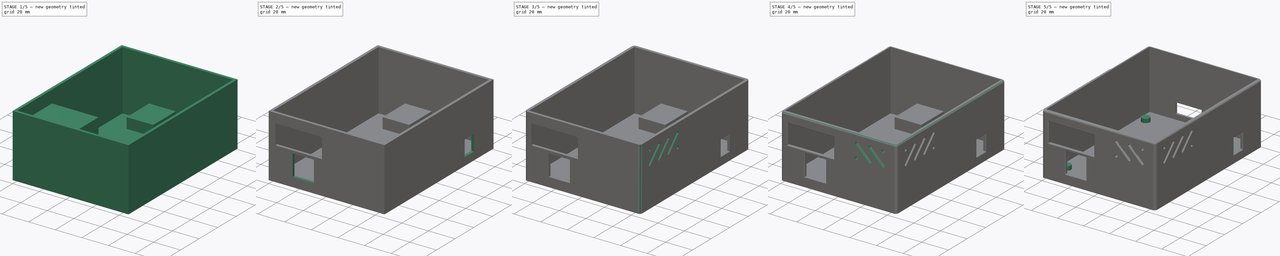
[diagram: build sequence overview — one tinted view per stage of 5, left to right]
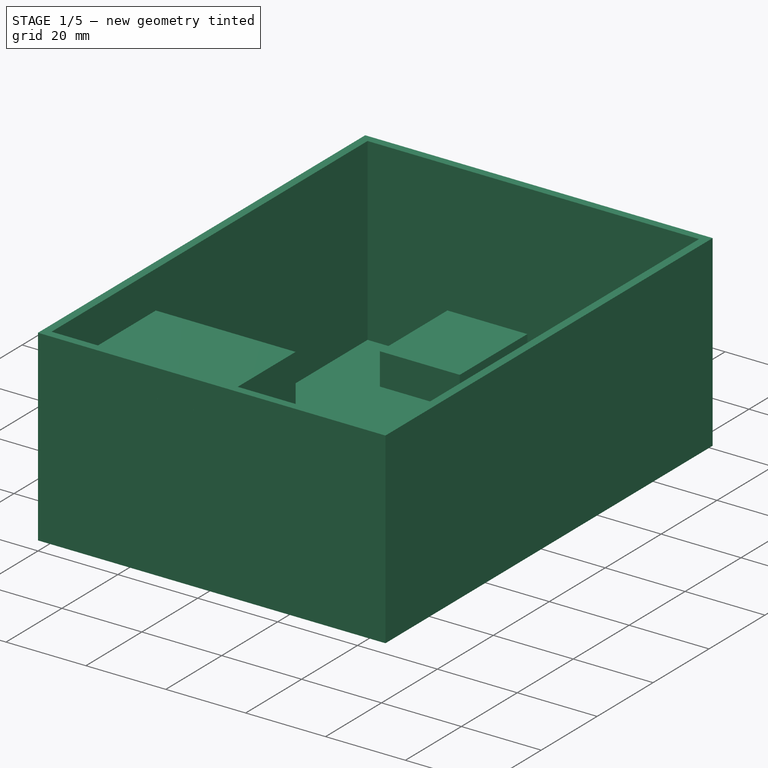
[diagram: stage 1 of 5 — iso view after this stage's code; geometry added in this stage tinted green]
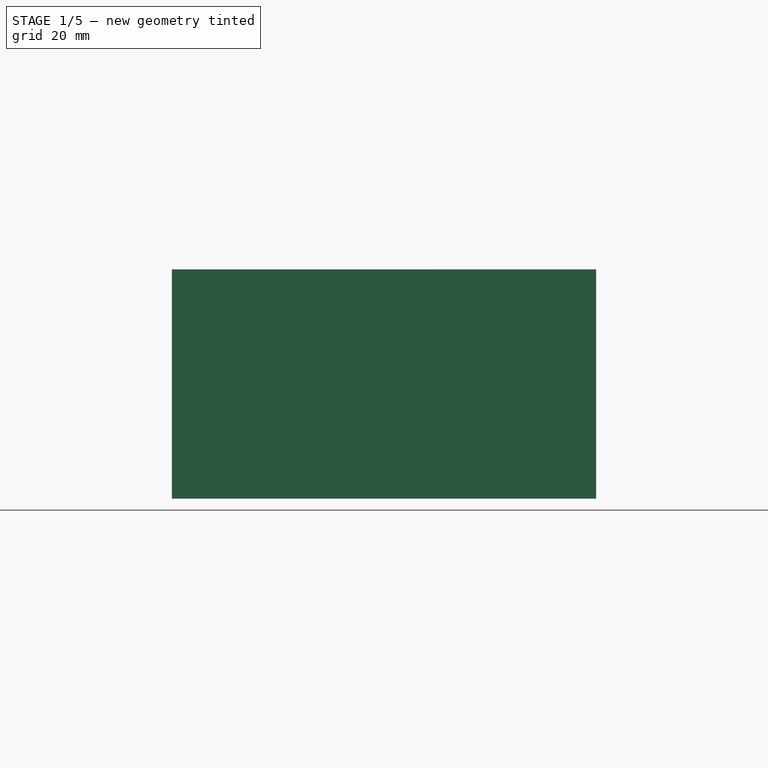
[diagram: stage 1 of 5 — front view after this stage's code; geometry added in this stage tinted green]
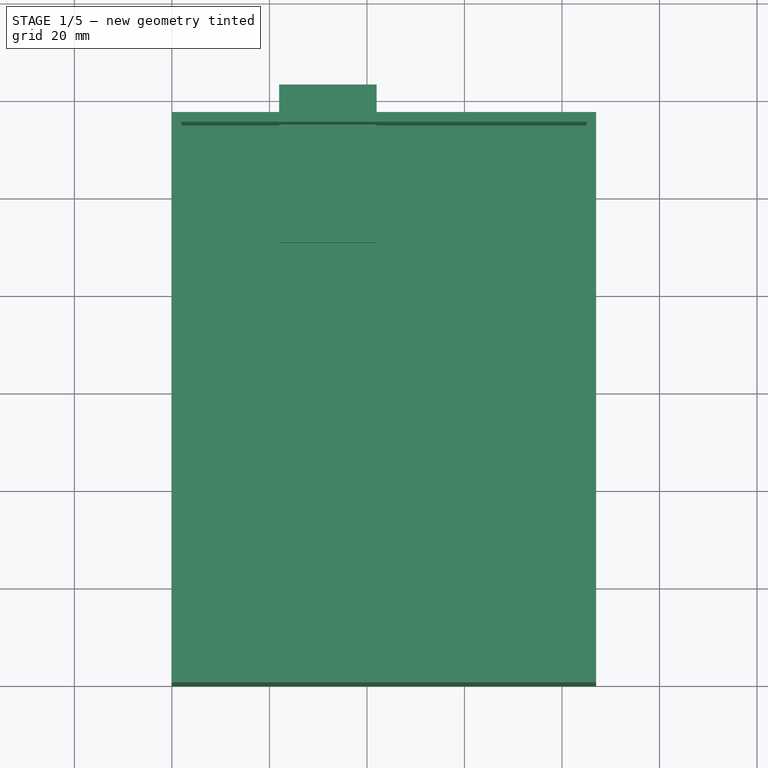
[diagram: stage 1 of 5 — top view after this stage's code; geometry added in this stage tinted green]
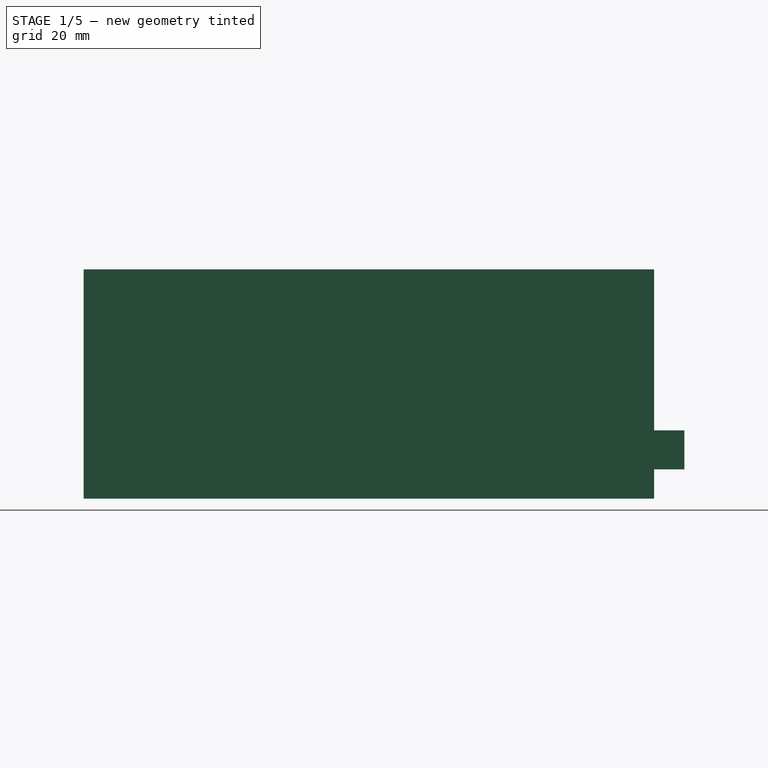
[diagram: stage 1 of 5 — right view after this stage's code; geometry added in this stage tinted green]
FCSTD DOCUMENT  (FreeCAD 0.14R3702 (Git))
Label: Modelodelgabinete
License: CC-BY 3.0
LicenseURL: http://creativecommons.org/licenses/by/3.0/
objects: PartDesign::Fillet×9, Part::Box×5, Part::Cut×5, Sketcher::SketchObject×4, Part::Part2DObjectPython×2, Part::Extrusion×2, PartDesign::Pad×2, PartDesign::Pocket×2
note: 35 computed .brp shape members not serialized (recipe doc carries the construction recipe); baked Part::Feature solids carry a one-line shape summary decoded from their .brp

FEATURE [Part::Box] Box  label="Exterior"
  Height = 47
  Length = 87
  Width = 117
FEATURE [Part::Box] Box001  label="Interior"
  Height = 45
  Length = 83
  Placement = pos=(2,2,2) rot=(0,0,1;0rad)
  Width = 113
FEATURE [Sketcher::SketchObject] Sketch002
  Placement = pos=(0,0,6) rot=(0,0,1;0rad)
  sketch-geometry (4):
    g0: LineSegment StartX=22 StartY=123.213 StartZ=0 EndX=42 EndY=123.213 EndZ=0
    g1: LineSegment StartX=42 StartY=123.213 StartZ=0 EndX=42 EndY=90.8368 EndZ=0
    g2: LineSegment StartX=42 StartY=90.8368 StartZ=0 EndX=22 EndY=90.8368 EndZ=0
    g3: LineSegment StartX=22 StartY=90.8368 StartZ=0 EndX=22 EndY=123.213 EndZ=0
  constraints (12):
    c: Coincident(g0,g1)
    c: Coincident(g1,g2)
    c: Coincident(g2,g3)
    c: Coincident(g3,g0)
    c: Horizontal(g0)
    c: Horizontal(g2)
    c: Vertical(g1)
    c: Vertical(g3)
    c: DistanceY(g-1,g2) = 90.8368
    c: DistanceX(g-1,g2) = 22
    c: DistanceX(g2) = -20
    c: DistanceY(g1) = -32.3759
FEATURE [PartDesign::Pad] Pad
  Length = 8
  Length2 = 100
  Placement = pos=(0,0,6) rot=(0,0,1;0rad)
  Sketch = -> Sketch002
  Type = 0
FEATURE [Part::Box] Box003  label="Cubo001"
  Height = 15
  Length = 35
  Placement = pos=(5,0,25) rot=(0,0,1;0rad)
  Width = 35
FEATURE [Part::Cut] Cut
  Base = -> Box
  Tool = -> Box001
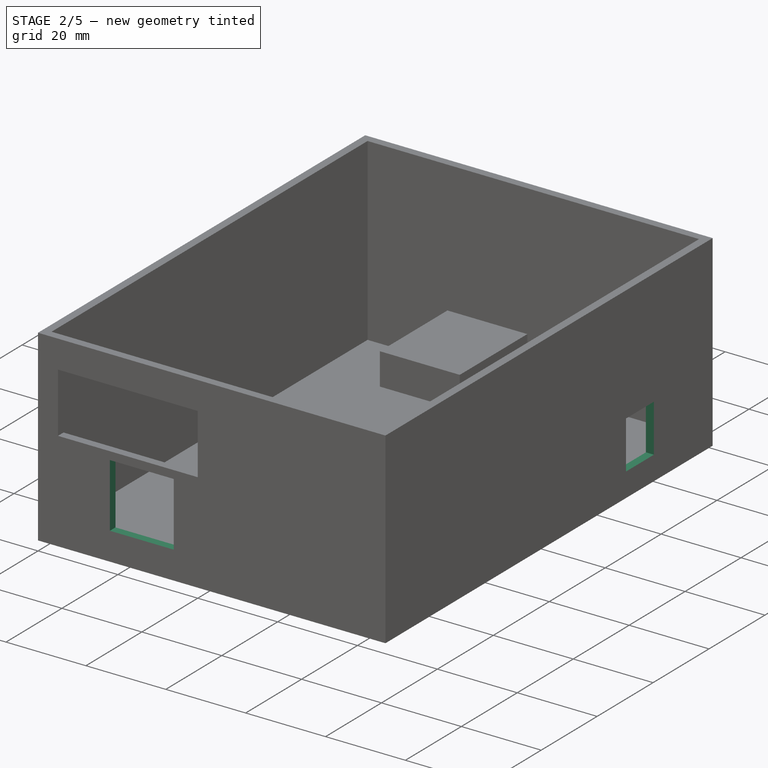
[diagram: stage 2 of 5 — iso view after this stage's code; geometry added in this stage tinted green]
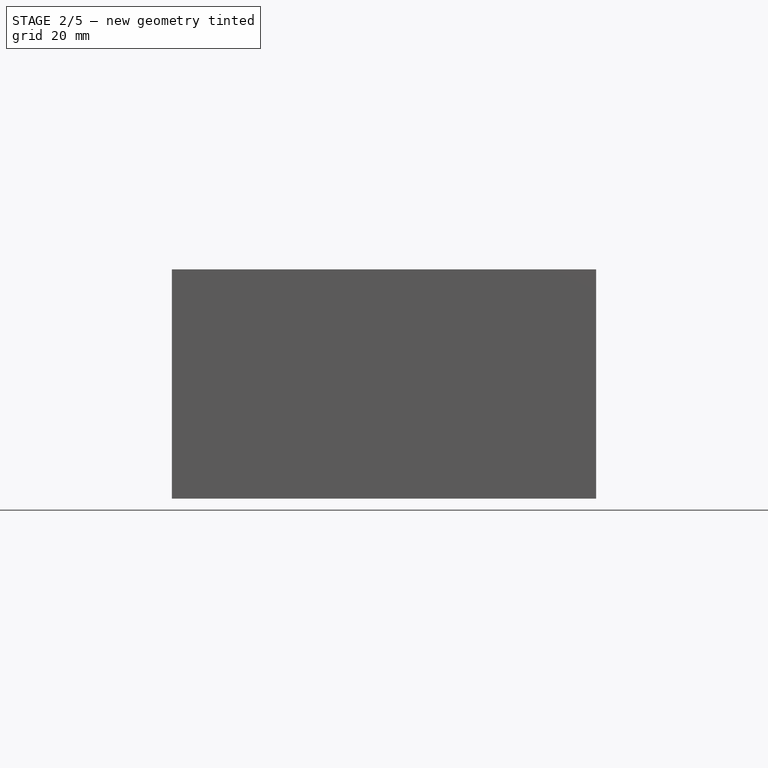
[diagram: stage 2 of 5 — front view after this stage's code; geometry added in this stage tinted green]
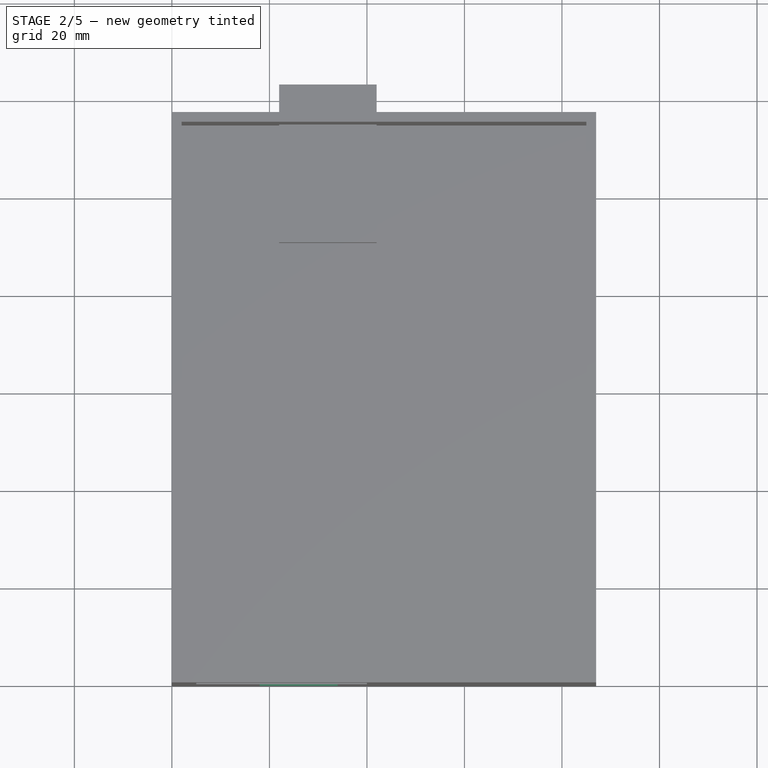
[diagram: stage 2 of 5 — top view after this stage's code; geometry added in this stage tinted green]
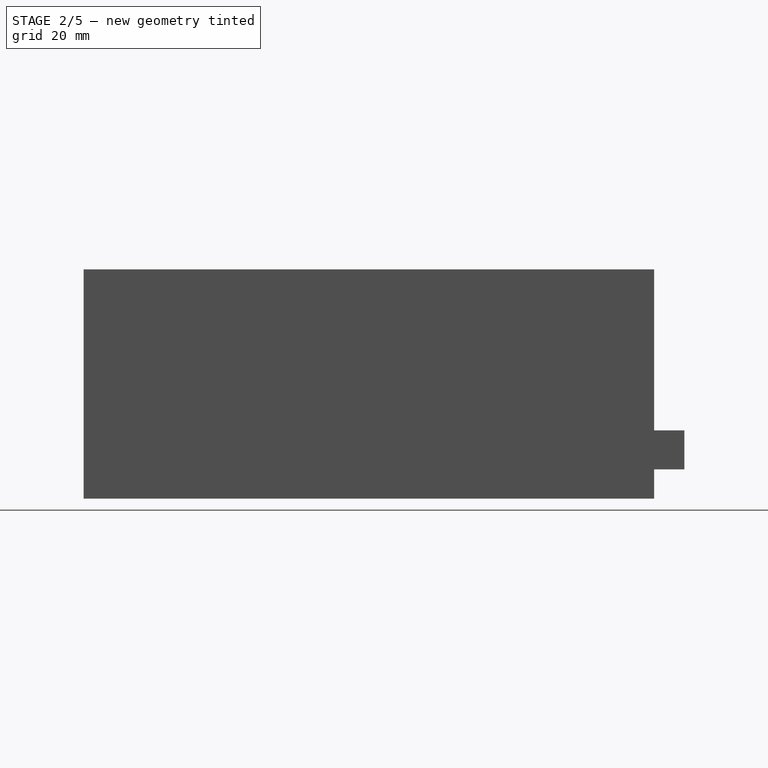
[diagram: stage 2 of 5 — right view after this stage's code; geometry added in this stage tinted green]
FEATURE [Part::Box] Box002  label="Cubo"
  Height = 16
  Length = 16
  Placement = pos=(18,0,7) rot=(0,0,1;0rad)
  Width = 16
FEATURE [Part::Box] Box004  label="Cubo002"
  Height = 12
  Length = 10
  Placement = pos=(79,86,6) rot=(0,0,1;0rad)
  Width = 10
FEATURE [Part::Cut] Cut001
  Base = -> Cut
  Tool = -> Box002
FEATURE [Part::Cut] Cut002
  Base = -> Cut001
  Tool = -> Box003
FEATURE [Part::Cut] Cut003
  Base = -> Cut002
  Tool = -> Box004
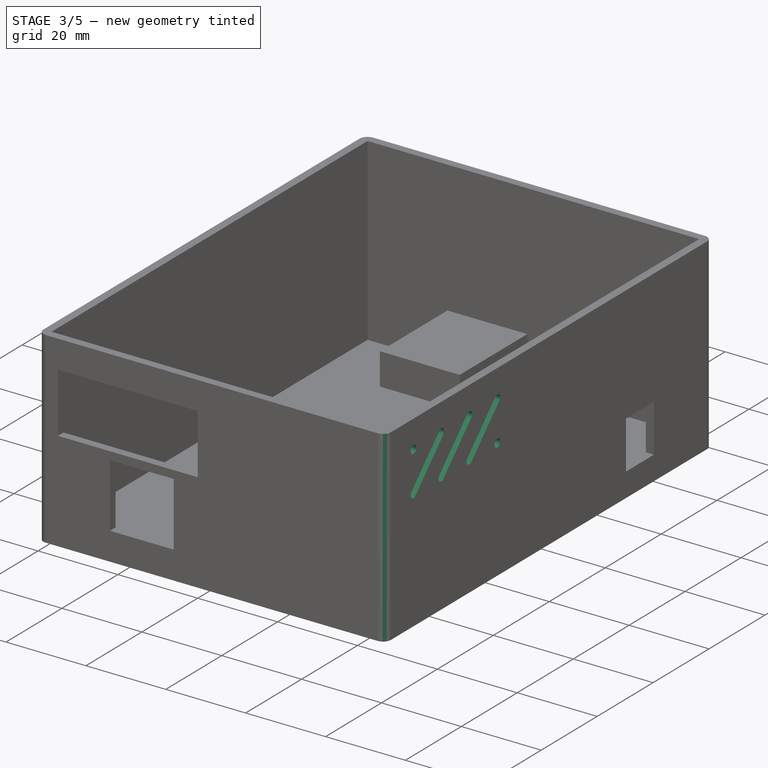
[diagram: stage 3 of 5 — iso view after this stage's code; geometry added in this stage tinted green]
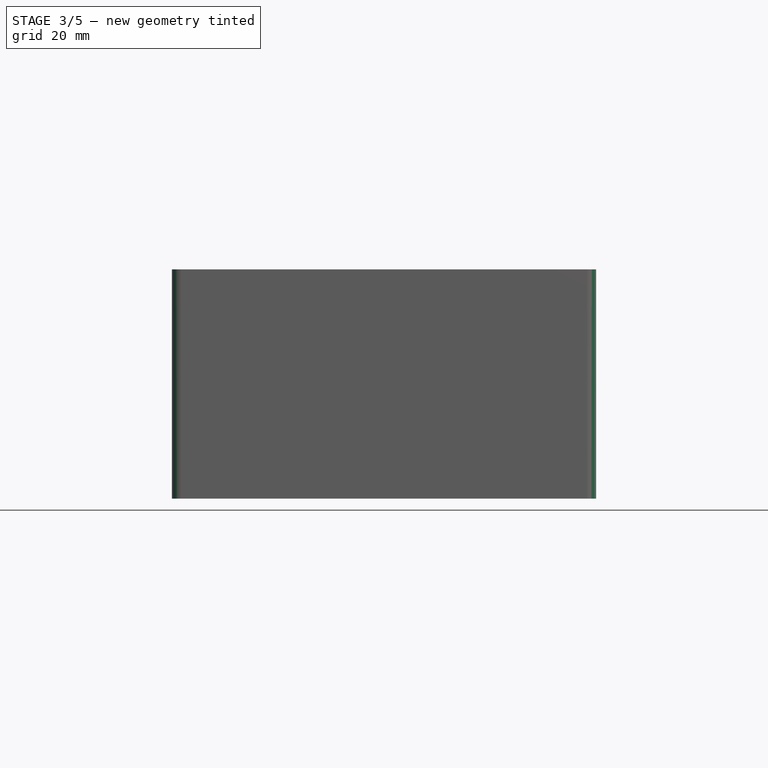
[diagram: stage 3 of 5 — front view after this stage's code; geometry added in this stage tinted green]
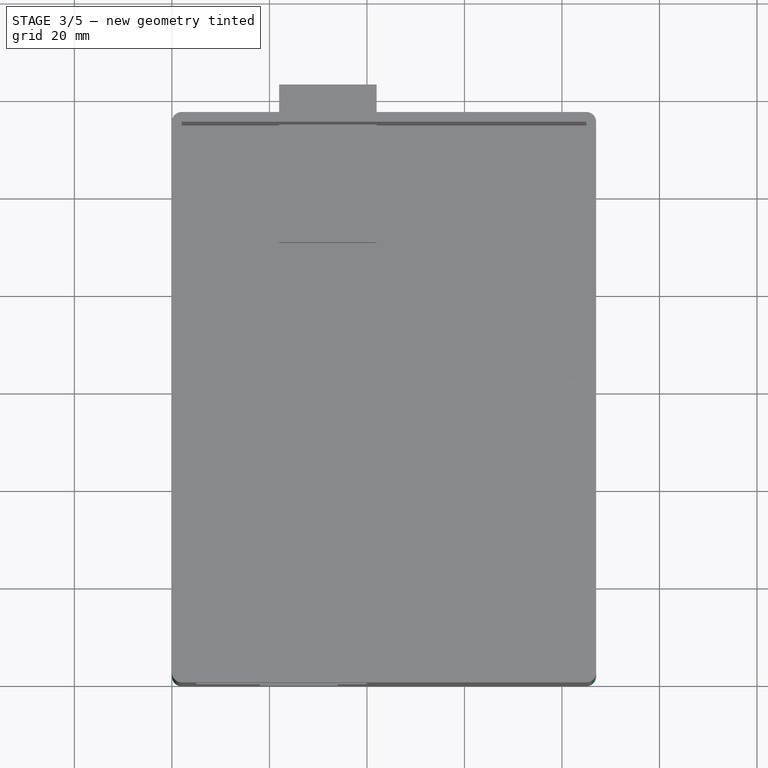
[diagram: stage 3 of 5 — top view after this stage's code; geometry added in this stage tinted green]
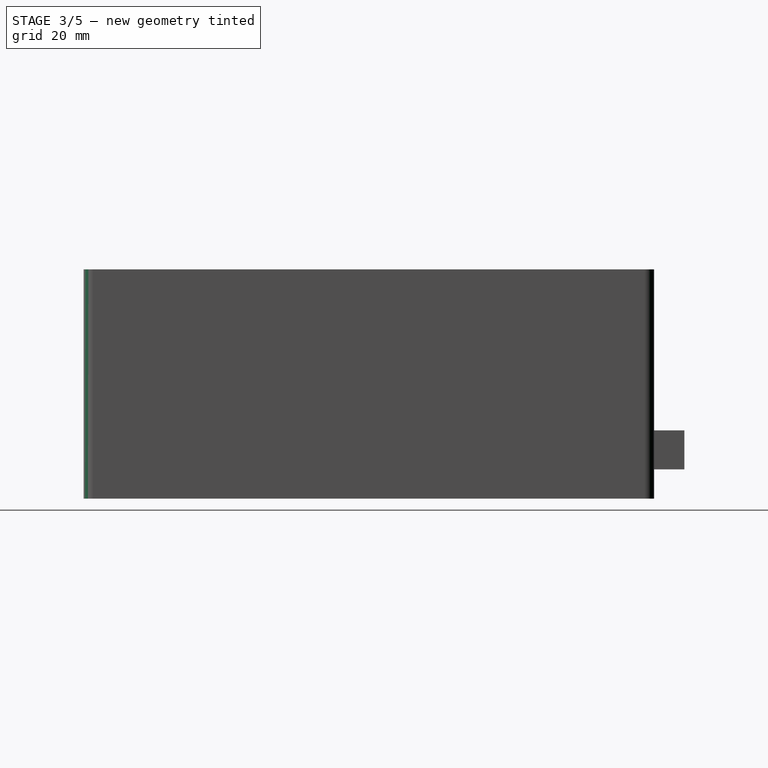
[diagram: stage 3 of 5 — right view after this stage's code; geometry added in this stage tinted green]
FEATURE [PartDesign::Fillet] Fillet
  Base = -> Cut003 [Edge6]
  Radius = 2
FEATURE [PartDesign::Fillet] Fillet001
  Base = -> Fillet [Edge3]
  Radius = 2
FEATURE [PartDesign::Fillet] Fillet002
  Base = -> Fillet001 [Edge45]
  Radius = 2
FEATURE [PartDesign::Fillet] Fillet003
  Base = -> Fillet002 [Edge15]
  Radius = 2
FEATURE [Sketcher::SketchObject] Sketch
  Placement = pos=(87,0,0) rot=(0.57735,0.57735,0.57735;2.0944rad)
  Support = -> Fillet003 [Face5]
  sketch-geometry (14):
    g0: ArcOfCircle CenterX=10 CenterY=30 CenterZ=0 NormalX=0 NormalY=0 NormalZ=1 Radius=1 StartAngle=2.35619 EndAngle=5.49779
    g1: ArcOfCircle CenterX=20 CenterY=40 CenterZ=0 NormalX=0 NormalY=0 NormalZ=1 Radius=1 StartAngle=5.49779 EndAngle=8.63938
    g2: LineSegment StartX=10.7071 StartY=29.2929 StartZ=0 EndX=20.7071 EndY=39.2929 EndZ=0
    g3: LineSegment StartX=9.29289 StartY=30.7071 StartZ=0 EndX=19.2929 EndY=40.7071 EndZ=0
    g4: ArcOfCircle CenterX=20 CenterY=30 CenterZ=0 NormalX=0 NormalY=0 NormalZ=1 Radius=1 StartAngle=2.35619 EndAngle=5.49779
    g5: ArcOfCircle CenterX=30 CenterY=40 CenterZ=0 NormalX=0 NormalY=0 NormalZ=1 Radius=1 StartAngle=5.49779 EndAngle=8.63938
    g6: LineSegment StartX=20.7071 StartY=29.2929 StartZ=0 EndX=30.7071 EndY=39.2929 EndZ=0
    g7: LineSegment StartX=19.2929 StartY=30.7071 StartZ=0 EndX=29.2929 EndY=40.7071 EndZ=0
    g8: ArcOfCircle CenterX=30 CenterY=30 CenterZ=0 NormalX=0 NormalY=0 NormalZ=1 Radius=1 StartAngle=2.35619 EndAngle=5.49779
    g9: ArcOfCircle CenterX=40 CenterY=40 CenterZ=0 NormalX=0 NormalY=0 NormalZ=1 Radius=1 StartAngle=5.4978 EndAngle=8.63937
    g10: LineSegment StartX=30.7071 StartY=29.2929 StartZ=0 EndX=40.7071 EndY=39.2929 EndZ=0
    g11: LineSegment StartX=29.2929 StartY=30.7071 StartZ=0 EndX=39.2929 EndY=40.7071 EndZ=0
    g12: Circle CenterX=40 CenterY=30 CenterZ=0 NormalX=0 NormalY=0 NormalZ=1 Radius=1
    g13: Circle CenterX=10 CenterY=40 CenterZ=0 NormalX=0 NormalY=0 NormalZ=1 Radius=1
  constraints (44):
    c: Tangent(g0,g2)
    c: Tangent(g0,g3)
    c: Tangent(g1,g2)
    c: Tangent(g1,g3)
    c: Coincident(g0,g3)
    c: Coincident(g0,g2)
    c: Coincident(g2,g1)
    c: Coincident(g3,g1)
    c: Equal(g0,g1)
    c: DistanceX(g-1,g0) = 10
    c: Distance(g0,g0) = 2
    c: DistanceY(g-1,g0) = 30
    c: Angle(g2,g-1) = 2.35619
    c: DistanceY(g-1,g1) = 40
    c: DistanceX(g0,g4) = 10
    c: Tangent(g4,g6)
    c: Tangent(g4,g7)
    c: Tangent(g5,g6)
    c: Tangent(g5,g7)
    c: Coincident(g4,g7)
    c: Coincident(g4,g6)
    c: Coincident(g6,g5)
    c: Coincident(g7,g5)
    c: Equal(g4,g5)
    c: DistanceX(g5,g1) = -10
    c: DistanceY(g1,g5) = 0
    c: Distance(g4,g4) = 2
    c: Tangent(g8,g10)
    c: Tangent(g8,g11)
    c: Tangent(g9,g10)
    c: Tangent(g9,g11)
    c: Coincident(g8,g11)
    c: Coincident(g8,g10)
    c: Coincident(g10,g9)
    c: Coincident(g11,g9)
    c: Equal(g8,g9)
    c: Distance(g8,g8) = 2
    c: DistanceX(g9,g5) = -10
    c: DistanceX(g4,g8) = 10
    c: DistanceY(g4,g0) = 0
    c: DistanceY(g4,g8) = 0
    c: DistanceY(g9,g5) = 0
    c: Radius(g12) = 1
    c: Radius(g13) = 1
FEATURE [PartDesign::Pocket] Pocket
  Length = 5
  Sketch = -> Sketch
  Type = 0
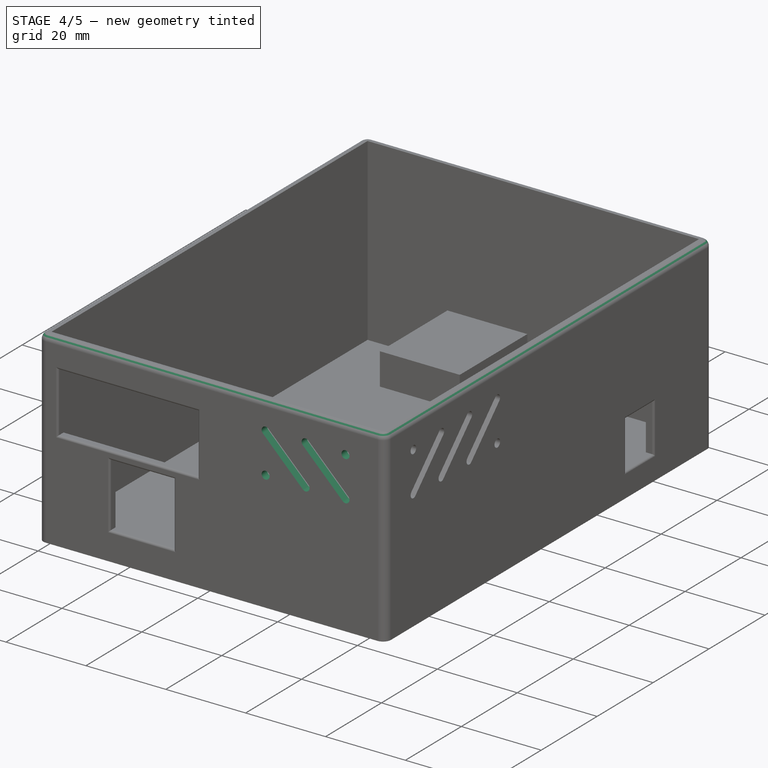
[diagram: stage 4 of 5 — iso view after this stage's code; geometry added in this stage tinted green]
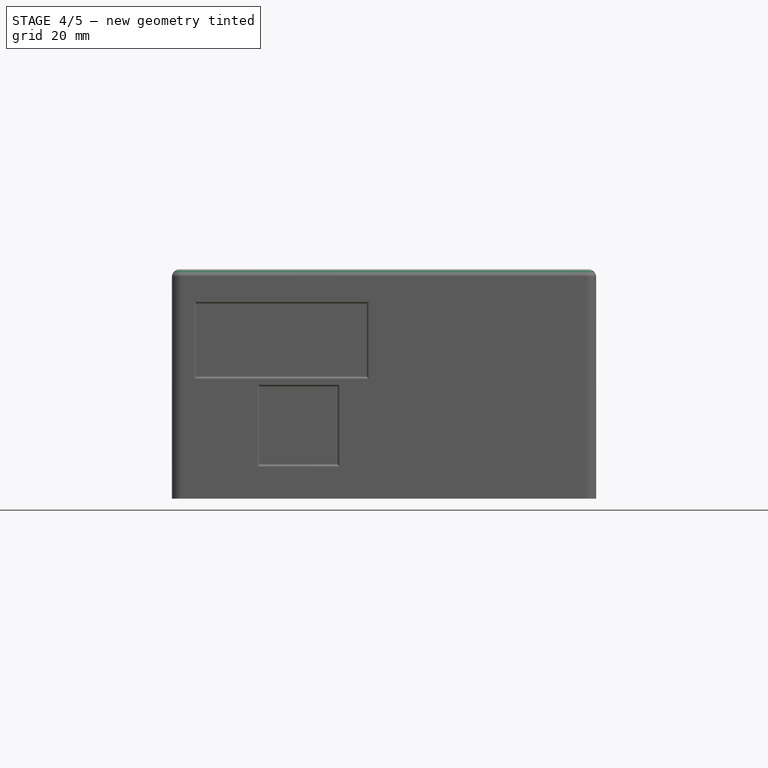
[diagram: stage 4 of 5 — front view after this stage's code; geometry added in this stage tinted green]
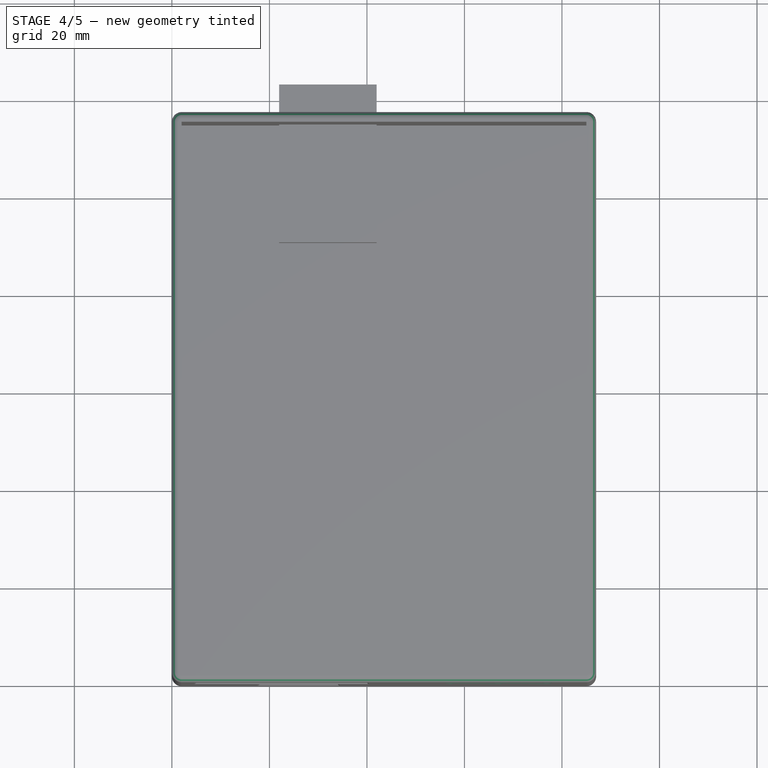
[diagram: stage 4 of 5 — top view after this stage's code; geometry added in this stage tinted green]
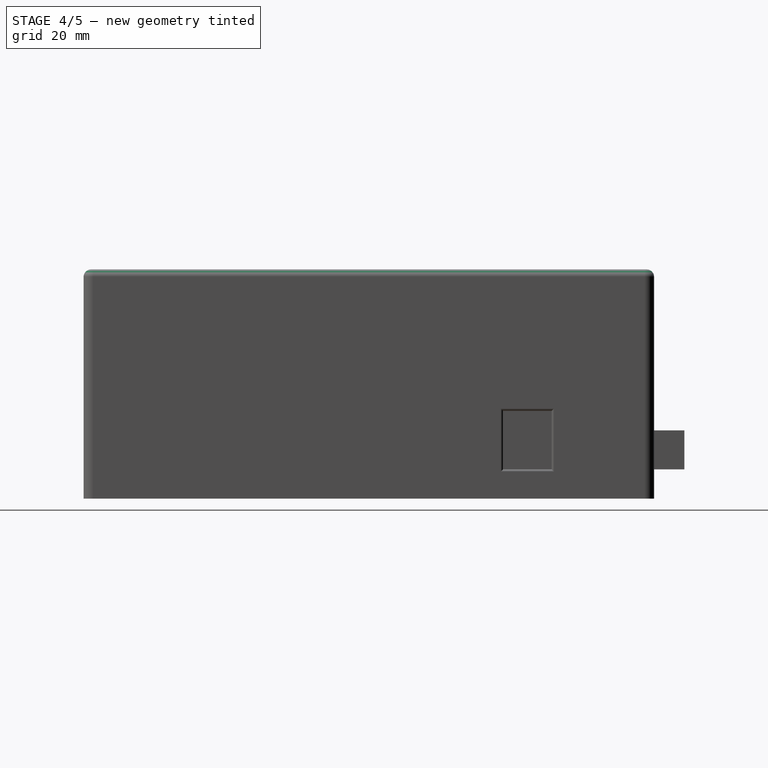
[diagram: stage 4 of 5 — right view after this stage's code; geometry added in this stage tinted green]
FEATURE [PartDesign::Fillet] Fillet004
  Base = -> Pocket [Edge16,Edge39,Edge42,Edge13,Edge11,Edge15,Edge36,Edge41]
  Radius = 1.5
FEATURE [PartDesign::Fillet] Fillet005
  Base = -> Fillet004 [Edge62,Edge60,Edge59,Edge61]
  Radius = 0.5
FEATURE [PartDesign::Fillet] Fillet006
  Base = -> Fillet005 [Edge9,Edge10,Edge11,Edge12]
  Radius = 0.5
FEATURE [PartDesign::Fillet] Fillet007
  Base = -> Fillet006 [Edge83,Edge81,Edge82,Edge84]
  Radius = 0.5
FEATURE [Sketcher::SketchObject] Sketch001
  ExternalGeometry = -> [Fillet007]
  Placement = pos=(0,0,0) rot=(1,0,0;1.5708rad)
  Support = -> Fillet007 [Face35]
  sketch-geometry (10):
    g0: ArcOfCircle CenterX=77 CenterY=30 CenterZ=0 NormalX=0 NormalY=0 NormalZ=1 Radius=1 StartAngle=3.92699 EndAngle=7.06858
    g1: ArcOfCircle CenterX=67 CenterY=40 CenterZ=0 NormalX=0 NormalY=0 NormalZ=1 Radius=1 StartAngle=0.785398 EndAngle=3.92699
    g2: LineSegment StartX=77.7071 StartY=30.7071 StartZ=0 EndX=67.7071 EndY=40.7071 EndZ=0
    g3: LineSegment StartX=76.2929 StartY=29.2929 StartZ=0 EndX=66.2929 EndY=39.2929 EndZ=0
    g4: Circle CenterX=77 CenterY=40 CenterZ=0 NormalX=0 NormalY=0 NormalZ=1 Radius=1
    g5: ArcOfCircle CenterX=67 CenterY=30 CenterZ=0 NormalX=0 NormalY=0 NormalZ=1 Radius=1 StartAngle=3.92699 EndAngle=7.06858
    g6: ArcOfCircle CenterX=57 CenterY=40 CenterZ=0 NormalX=0 NormalY=0 NormalZ=1 Radius=1 StartAngle=0.785398 EndAngle=3.92699
    g7: LineSegment StartX=67.7071 StartY=30.7071 StartZ=0 EndX=57.7071 EndY=40.7071 EndZ=0
    g8: LineSegment StartX=66.2929 StartY=29.2929 StartZ=0 EndX=56.2929 EndY=39.2929 EndZ=0
    g9: Circle CenterX=57 CenterY=30 CenterZ=0 NormalX=0 NormalY=0 NormalZ=1 Radius=1
  constraints (34):
    c: Tangent(g0,g2)
    c: Tangent(g0,g3)
    c: Tangent(g1,g2)
    c: Tangent(g1,g3)
    c: Coincident(g0,g3)
    c: Coincident(g0,g2)
    c: Coincident(g2,g1)
    c: Coincident(g3,g1)
    c: Equal(g0,g1)
    c: DistanceX(g0,g-3) = 8
    c: DistanceX(g1,g0) = 10
    c: Distance(g0,g0) = 2
    c: DistanceY(g0,g1) = 10
    c: DistanceY(g-3,g0) = 30
    c: Radius(g4) = 1
    c: DistanceX(g4,g1) = -10
    c: DistanceY(g0,g4) = 10
    c: Tangent(g5,g7)
    c: Tangent(g5,g8)
    c: Tangent(g6,g7)
    c: Tangent(g6,g8)
    c: Coincident(g5,g8)
    c: Coincident(g5,g7)
    c: Coincident(g7,g6)
    c: Coincident(g8,g6)
    c: Equal(g5,g6)
    c: Distance(g6,g6) = 2
    c: DistanceX(g5,g0) = 10
    c: DistanceY(g5,g0) = 0
    c: DistanceX(g6,g5) = 10
    c: DistanceY(g6,g5) = -10
    c: DistanceX(g9,g5) = 10
    c: DistanceY(g9,g5) = 0
    c: Radius(g9) = 1
FEATURE [PartDesign::Pocket] Pocket001
  Length = 5
  Sketch = -> Sketch001
  Type = 0
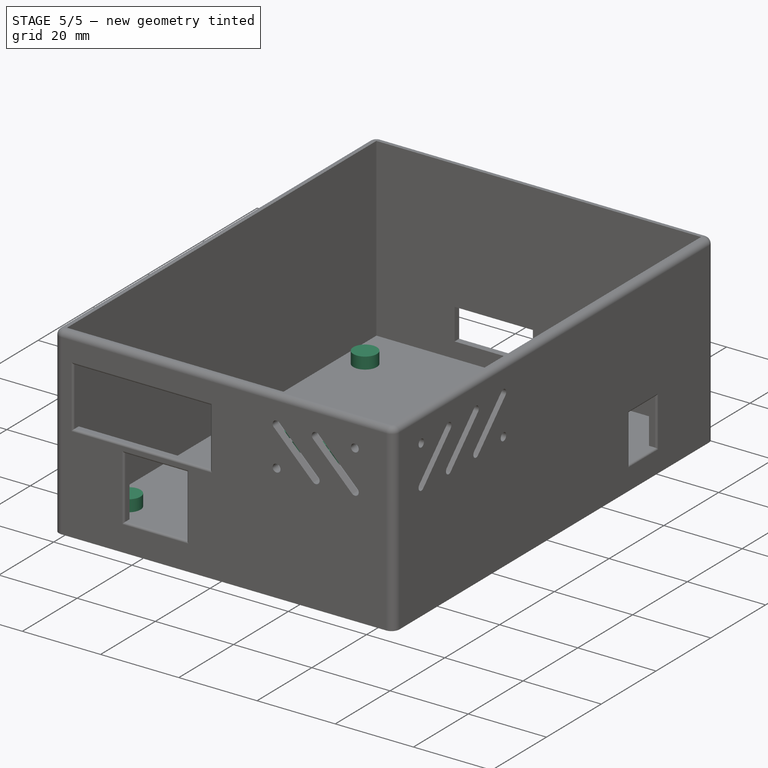
[diagram: stage 5 of 5 — iso view after this stage's code; geometry added in this stage tinted green]
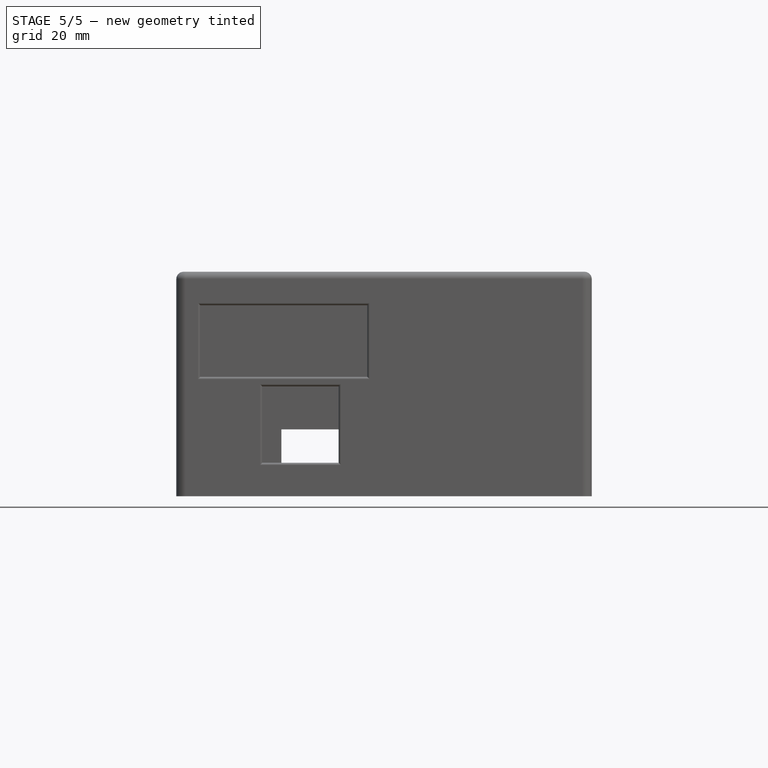
[diagram: stage 5 of 5 — front view after this stage's code; geometry added in this stage tinted green]
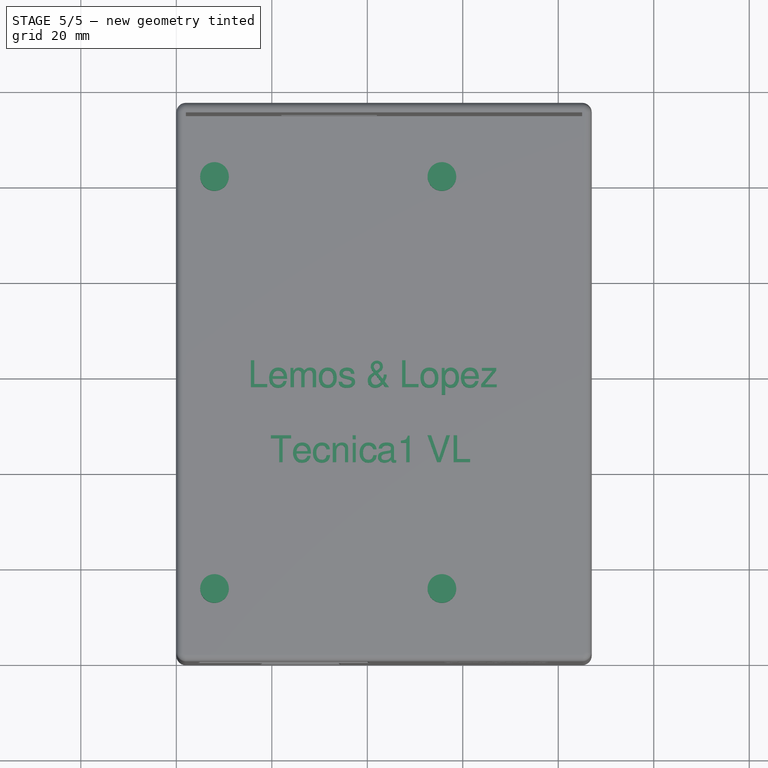
[diagram: stage 5 of 5 — top view after this stage's code; geometry added in this stage tinted green]
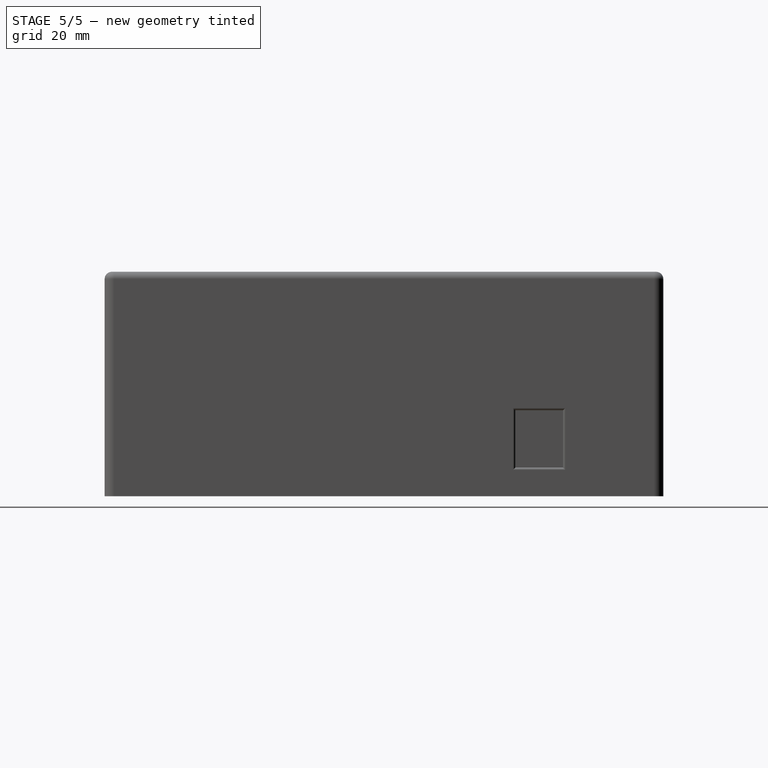
[diagram: stage 5 of 5 — right view after this stage's code; geometry added in this stage tinted green]
FEATURE [Part::Part2DObjectPython] ShapeString  # Draft 2D object (typed FeaturePython)
  FontFile = <path>
  Placement = pos=(19.4828,42.5226,2) rot=(0,0,1;0rad)
  Size = 3
  String = Tecnica1 VL
  Tracking = 2
FEATURE [Part::Extrusion] Extrude
  Base = -> ShapeString
  Dir = (0,0,1)
  Solid = true
FEATURE [Part::Part2DObjectPython] ShapeString001  # Draft 2D object (typed FeaturePython)
  FontFile = <path>
  Placement = pos=(14.9681,58.2097,2) rot=(0,0,1;0rad)
  Size = 3
  String = Lemos & Lopez
  Tracking = 0
FEATURE [Part::Extrusion] Extrude001
  Base = -> ShapeString001
  Dir = (0,0,2)
  Solid = true
FEATURE [Part::Cut] Cut004
  Base = -> Pocket001
  Tool = -> Pad
FEATURE [PartDesign::Fillet] Fillet008
  Base = -> Cut004 [Edge84,Edge83,Edge86,Edge85]
  Radius = 0.5
FEATURE [Sketcher::SketchObject] Sketch003
  Placement = pos=(0,0,2) rot=(0,0,1;0rad)
  Support = -> Fillet008 [Face67]
  sketch-geometry (4):
    g0: Circle CenterX=8 CenterY=16 CenterZ=0 NormalX=0 NormalY=0 NormalZ=1 Radius=3
    g1: Circle CenterX=8 CenterY=102.3 CenterZ=0 NormalX=0 NormalY=0 NormalZ=1 Radius=3
    g2: Circle CenterX=55.625 CenterY=102.3 CenterZ=0 NormalX=0 NormalY=0 NormalZ=1 Radius=3
    g3: Circle CenterX=55.625 CenterY=16 CenterZ=0 NormalX=0 NormalY=0 NormalZ=1 Radius=3
  constraints (12):
    c: Radius(g0) = 3
    c: DistanceY(g-1,g0) = 16
    c: DistanceX(g-1,g0) = 8
    c: DistanceY(g1,g0) = -86.3
    c: DistanceX(g0,g1) = 0
    c: Radius(g1) = 3
    c: Radius(g2) = 3
    c: DistanceX(g2,g1) = -47.625
    c: DistanceY(g2,g1) = 0
    c: DistanceY(g3,g0) = 0
    c: DistanceX(g3,g2) = 0
    c: Radius(g3) = 3
FEATURE [PartDesign::Pad] Pad001
  Length = 3
  Length2 = 100
  Sketch = -> Sketch003
  Type = 0
note: 2 file-system paths scrubbed to <path> (originals preserved in the JSON sidecar)
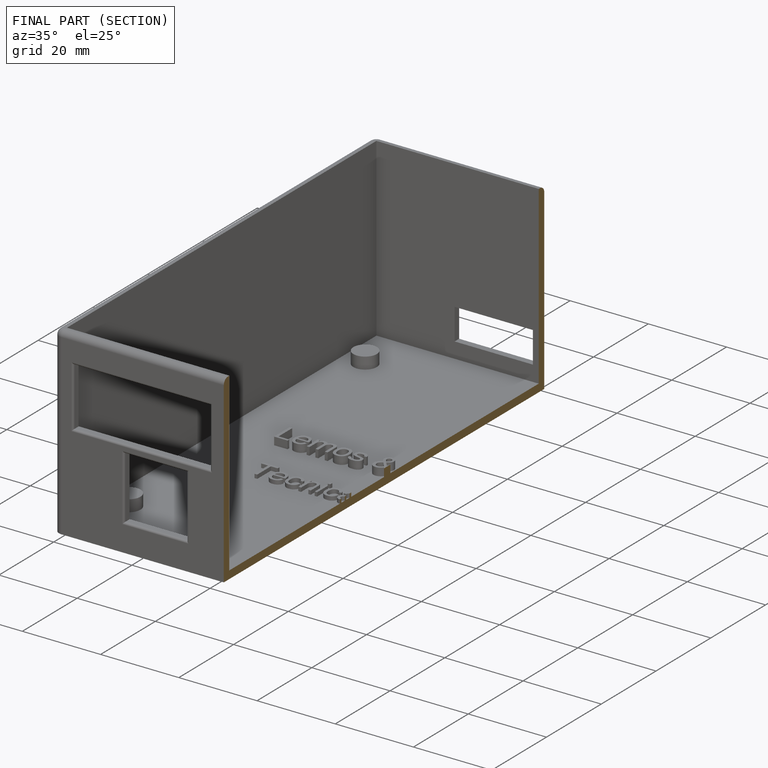
[diagram: finished part — half-section view (interior)]
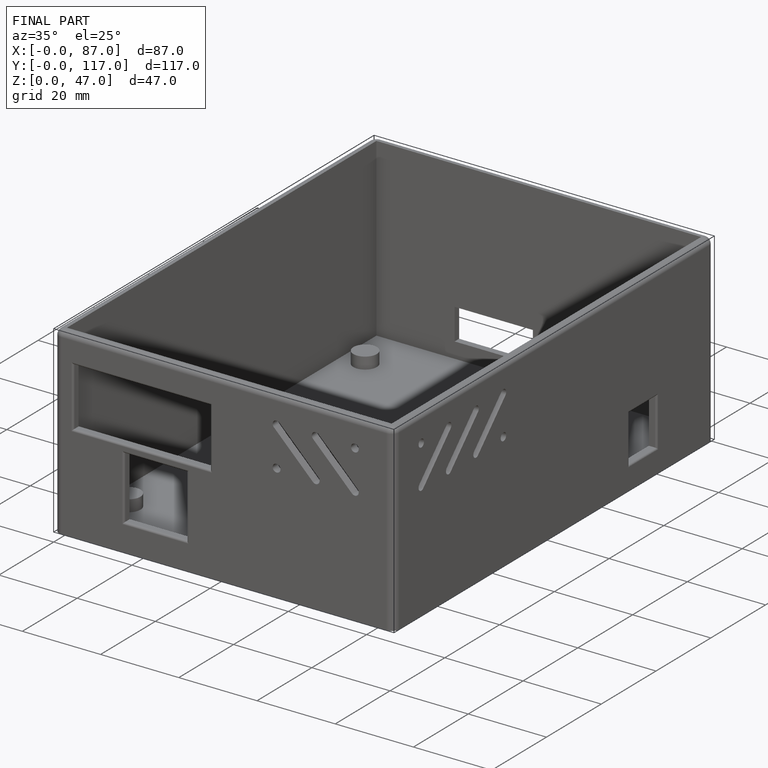
[diagram: finished part — iso view with bounding-box wireframe]
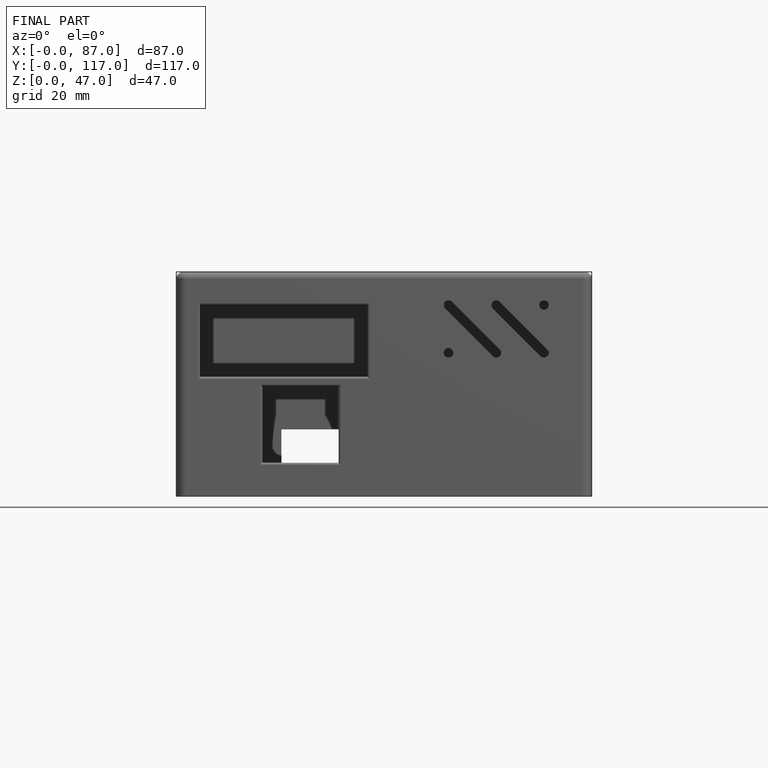
[diagram: finished part — front view with bounding-box wireframe]
